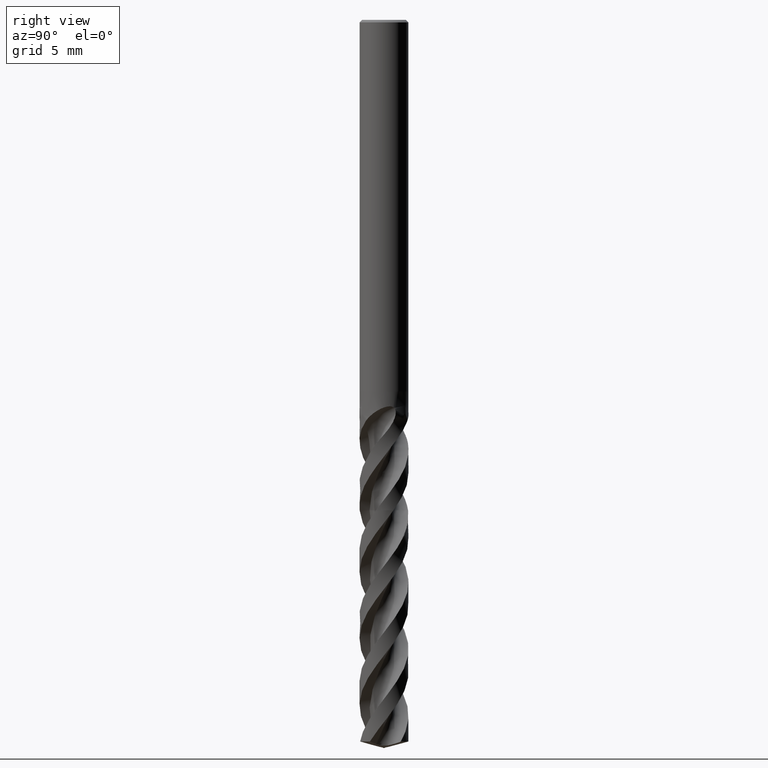
[diagram: clean part render]
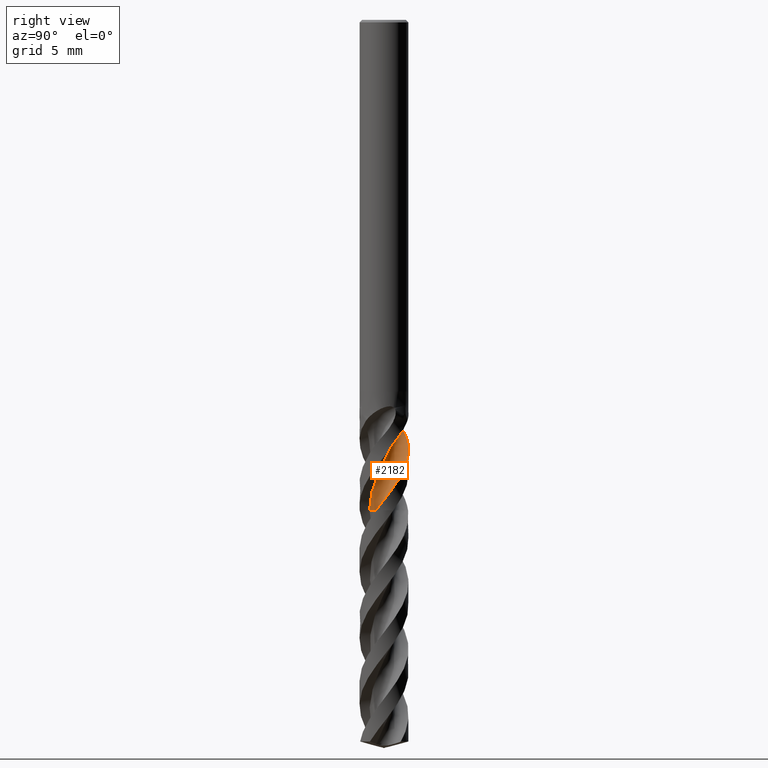
[diagram: same view with one face highlighted and labeled with its STEP entity id]
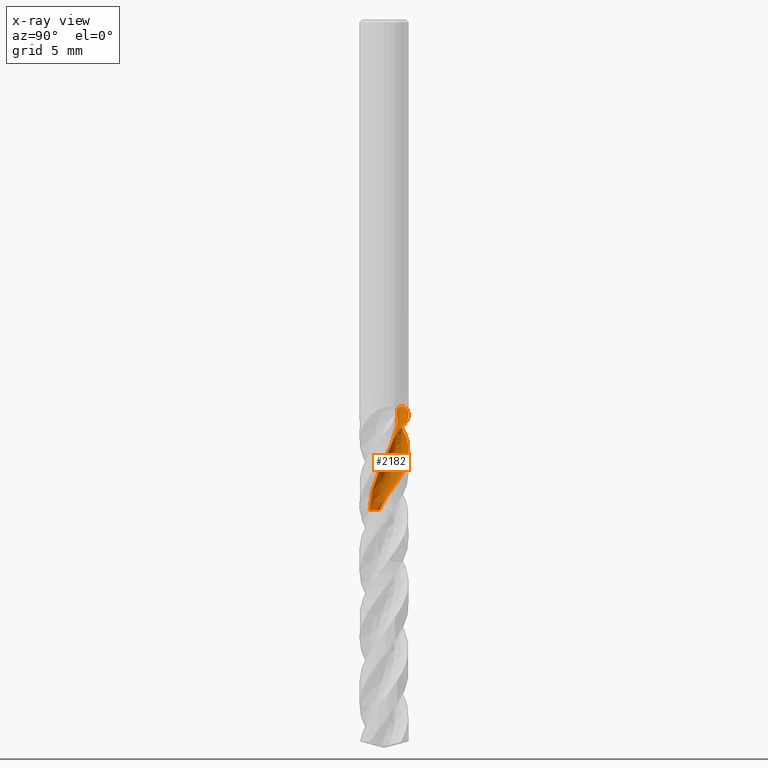
[diagram: x-ray of the same camera — body ghosted, the highlighted face saturated]
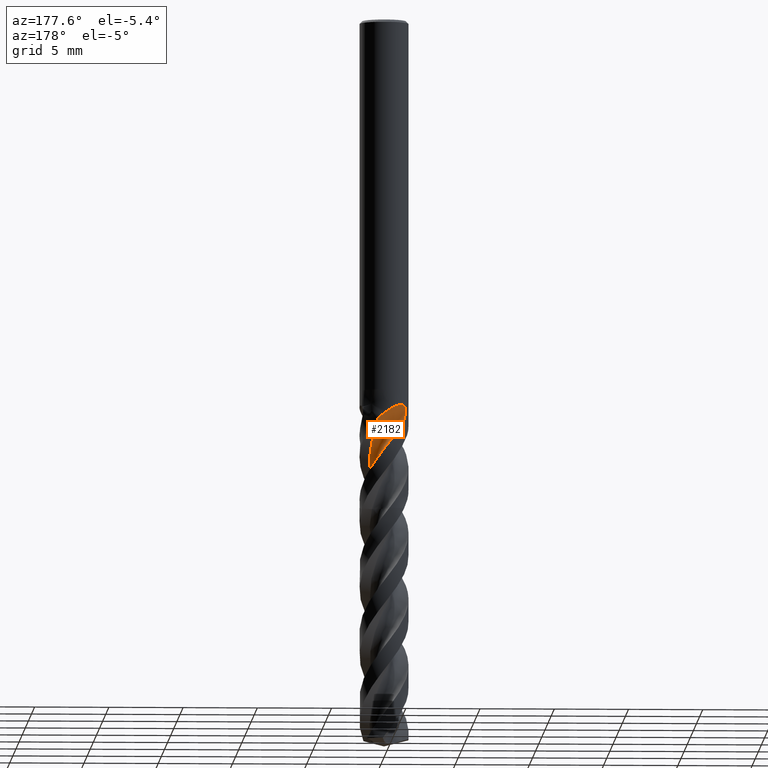
[diagram: same view with one face highlighted and labeled with its STEP entity id]
A machine part, right view. The second image highlights one B-rep face of the part: STEP entity #2182.
The next image is the same camera in x-ray: the body ghosted, the highlighted face saturated — about 0% of this face is hidden behind the body in this view.
A second angle (auxiliary view) of the same face is appended — the face is thin or edge-on in the first view.
In plain terms, the highlighted face is a freeform B-spline surface patch.
Its self-contained STEP definition (entity closure, byte-faithful):
#1944 = VERTEX_POINT('', #1945);
#1945 = CARTESIAN_POINT('', (0.0131020904843902, -0.971799525037935, -33.));
#1951 = EDGE_CURVE('', #1944, #1952, #1954, .T.);
#1952 = VERTEX_POINT('', #1953);
#1953 = CARTESIAN_POINT('', (0.49670759002583, 1.57346165190345, -26.979900439806));
#1954 = B_SPLINE_CURVE_WITH_KNOTS('', 3, (#1955, #1956, #1957, #1958, #1959, #1960, #1961, #1962, #1963, #1964, #1965, #1966, #1967, #1968, #1969, #1970, #1971, #1972, #1973, #1974, #1975, #1976, #1977, #1978, #1979, #1980, #1981, #1982, #1983, #1984, #1985), .UNSPECIFIED., .F., .U., (4, 1, 1, 1, 1, 1, 1, 1, 1, 1, 1, 1, 1, 1, 1, 1, 1, 1, 1, 1, 1, 1, 1, 1, 1, 1, 1, 1, 4), (16.05, 16.1126213592233, 16.3364077669903, 16.5601941747573, 16.7839805825243, 17.0077669902913, 17.2315533980583, 17.4553398058252, 17.6791262135922, 17.9029126213592, 18.1266990291262, 18.3504854368932, 18.5742718446602, 18.7980582524272, 19.0218446601942, 19.2456310679612, 19.4694174757282, 19.6932038834951, 19.9169902912621, 20.1407766990291, 20.3645631067961, 20.5883495145631, 20.8121359223301, 21.0359223300971, 21.2597087378641, 21.4834951456311, 21.7072815533981, 21.931067961165, 22.070099560194), .UNSPECIFIED.);
#1955 = CARTESIAN_POINT('', (0.0131020904843902, -0.971799525037935, -33.));
#1956 = CARTESIAN_POINT('', (0.0226140409089809, -0.97181311853795, -32.9791262135922));
#1957 = CARTESIAN_POINT('', (0.0661287569991936, -0.971239658530028, -32.8836569579288));
#1958 = CARTESIAN_POINT('', (0.143578533043543, -0.965031214780982, -32.7135922330097));
#1959 = CARTESIAN_POINT('', (0.244250959712901, -0.946249666732746, -32.4898058252427));
#1960 = CARTESIAN_POINT('', (0.3425817079426, -0.917024930603788, -32.2660194174757));
#1961 = CARTESIAN_POINT('', (0.437493439930407, -0.87763886911202, -32.0422330097087));
#1962 = CARTESIAN_POINT('', (0.52794184109782, -0.828483882934256, -31.8184466019417));
#1963 = CARTESIAN_POINT('', (0.612926791987953, -0.77005911862718, -31.5946601941748));
#1964 = CARTESIAN_POINT('', (0.691503628772232, -0.702965609439488, -31.3708737864078));
#1965 = CARTESIAN_POINT('', (0.762791954000859, -0.627900026681434, -31.1470873786408));
#1966 = CARTESIAN_POINT('', (0.825990928728089, -0.545648476821319, -30.9233009708738));
#1967 = CARTESIAN_POINT('', (0.880367197434662, -0.457075274837783, -30.6995145631068));
#1968 = CARTESIAN_POINT('', (0.925341283691865, -0.36312595180147, -30.4757281553398));
#1969 = CARTESIAN_POINT('', (0.960202371940148, -0.264773011997502, -30.2519417475728));
#1970 = CARTESIAN_POINT('', (0.985205444545736, -0.163171656013547, -30.0281553398058));
#1971 = CARTESIAN_POINT('', (0.997491547758268, -0.0590265318630547, -29.8043689320388));
#1972 = CARTESIAN_POINT('', (0.994909050828295, 0.0457669819572636, -29.5805825242718));
#1973 = CARTESIAN_POINT('', (0.977705911766928, 0.148704661574756, -29.3567961165049));
#1974 = CARTESIAN_POINT('', (0.947592598004681, 0.248163274005895, -29.1330097087379));
#1975 = CARTESIAN_POINT('', (0.900136157724671, 0.339839567675919, -28.9092233009709));
#1976 = CARTESIAN_POINT('', (0.858001736740412, 0.430549599531326, -28.6854368932039));
#1977 = CARTESIAN_POINT('', (0.825965157546661, 0.528525681295621, -28.4616504854369));
#1978 = CARTESIAN_POINT('', (0.798828715651507, 0.637418469554116, -28.2378640776699));
#1979 = CARTESIAN_POINT('', (0.772767076662069, 0.761131772603629, -28.0140776699029));
#1980 = CARTESIAN_POINT('', (0.742476044242813, 0.902301462352913, -27.7902912621359));
#1981 = CARTESIAN_POINT('', (0.702159825906656, 1.06250960346614, -27.5665048543689));
#1982 = CARTESIAN_POINT('', (0.645519358019465, 1.24207043844005, -27.3427184466019));
#1983 = CARTESIAN_POINT('', (0.576066235132568, 1.41498884091217, -27.1471836417476));
#1984 = CARTESIAN_POINT('', (0.520240851553265, 1.52892613205528, -27.026244306149));
#1985 = CARTESIAN_POINT('', (0.49670759002583, 1.57346165190345, -26.979900439806));
#2182 = ADVANCED_FACE('', (#2183), #2480, .T.);
#2183 = FACE_OUTER_BOUND('', #2184, .T.);
#2184 = EDGE_LOOP('', (#2185, #2236, #2251, #2302, #2314, #2416, #2424, #2479));
#2185 = ORIENTED_EDGE('', *, *, #2186, .T.);
#2186 = EDGE_CURVE('', #1944, #2187, #2189, .T.);
#2187 = VERTEX_POINT('', #2188);
#2188 = CARTESIAN_POINT('', (1.54610280983681, -0.528626256009903, -33.));
#2189 = B_SPLINE_CURVE_WITH_KNOTS('', 3, (#2190, #2191, #2192, #2193, #2194, #2195, #2196, #2197, #2198, #2199, #2200, #2201, #2202, #2203, #2204, #2205, #2206, #2207, #2208, #2209, #2210, #2211, #2212, #2213, #2214, #2215, #2216, #2217, #2218, #2219, #2220, #2221, #2222, #2223, #2224, #2225, #2226, #2227, #2228, #2229, #2230, #2231, #2232, #2233, #2234, #2235), .UNSPECIFIED., .F., .U., (4, 3, 3, 3, 3, 3, 3, 3, 3, 3, 3, 3, 3, 3, 3, 4), (0., 0.132464291243381, 0.264607078719821, 0.39643959286919, 0.527969728380008, 0.659202376803676, 0.790139631887621, 0.920780885919178, 0.946708448213211, 1.07914212865441, 1.2112555076672, 1.34305948600255, 1.47456166583973, 1.60576667043317, 1.73667633864977, 1.86861989140208), .UNSPECIFIED.);
#2190 = CARTESIAN_POINT('', (0.0131020904843889, -0.971799525037935, -33.));
#2191 = CARTESIAN_POINT('', (0.0273870974185686, -0.930019365410261, -33.));
#2192 = CARTESIAN_POINT('', (0.0445591050700874, -0.889118792339436, -33.));
#2193 = CARTESIAN_POINT('', (0.0643807446790761, -0.849663174680669, -33.));
#2194 = CARTESIAN_POINT('', (0.0841542752336064, -0.810303319657893, -33.));
#2195 = CARTESIAN_POINT('', (0.106655308802681, -0.772200689225171, -33.));
#2196 = CARTESIAN_POINT('', (0.131574316266139, -0.735879431468302, -33.));
#2197 = CARTESIAN_POINT('', (0.156434813511215, -0.699643456591436, -33.));
#2198 = CARTESIAN_POINT('', (0.183815482861877, -0.665014892695391, -33.));
#2199 = CARTESIAN_POINT('', (0.213341430526762, -0.632467871125979, -33.));
#2200 = CARTESIAN_POINT('', (0.242799655779506, -0.599995501277613, -33.));
#2201 = CARTESIAN_POINT('', (0.274527265993092, -0.569447402645295, -33.));
#2202 = CARTESIAN_POINT('', (0.308091833153283, -0.541239927218389, -33.));
#2203 = CARTESIAN_POINT('', (0.341580485959115, -0.513096249792359, -33.));
#2204 = CARTESIAN_POINT('', (0.377049382091417, -0.487155147924358, -33.));
#2205 = CARTESIAN_POINT('', (0.414017278949075, -0.463768590936816, -33.));
#2206 = CARTESIAN_POINT('', (0.450901964268702, -0.44043467506607, -33.));
#2207 = CARTESIAN_POINT('', (0.489445129975114, -0.419538591941783, -33.));
#2208 = CARTESIAN_POINT('', (0.529126165389514, -0.40136258937158, -33.));
#2209 = CARTESIAN_POINT('', (0.568717496554081, -0.383227676068794, -33.));
#2210 = CARTESIAN_POINT('', (0.60961918365129, -0.367719131723517, -33.));
#2211 = CARTESIAN_POINT('', (0.651281245604813, -0.355045490665683, -33.));
#2212 = CARTESIAN_POINT('', (0.659549657559408, -0.352530231451011, -33.));
#2213 = CARTESIAN_POINT('', (0.667852283983677, -0.350124815682308, -33.));
#2214 = CARTESIAN_POINT('', (0.676184713351481, -0.347830521455659, -33.));
#2215 = CARTESIAN_POINT('', (0.718745378163717, -0.33611164773339, -33.));
#2216 = CARTESIAN_POINT('', (0.762204402807338, -0.327272519712593, -33.));
#2217 = CARTESIAN_POINT('', (0.80596132959021, -0.321435264441807, -33.));
#2218 = CARTESIAN_POINT('', (0.849612426752515, -0.315612127038885, -33.));
#2219 = CARTESIAN_POINT('', (0.893760283773454, -0.312749571989995, -33.));
#2220 = CARTESIAN_POINT('', (0.937797862468094, -0.312886959761051, -33.));
#2221 = CARTESIAN_POINT('', (0.981732308105489, -0.313024025779157, -33.));
#2222 = CARTESIAN_POINT('', (1.02575765000143, -0.316147561645735, -33.));
#2223 = CARTESIAN_POINT('', (1.06927135696063, -0.322214818622939, -33.));
#2224 = CARTESIAN_POINT('', (1.11268542829748, -0.328268183082884, -33.));
#2225 = CARTESIAN_POINT('', (1.15578758642804, -0.337279262124182, -33.));
#2226 = CARTESIAN_POINT('', (1.19799062401566, -0.349125292248352, -33.));
#2227 = CARTESIAN_POINT('', (1.24009828905512, -0.360944552117505, -33.));
#2228 = CARTESIAN_POINT('', (1.28150147852078, -0.375639397134144, -33.));
#2229 = CARTESIAN_POINT('', (1.32163866905579, -0.393010531089237, -33.));
#2230 = CARTESIAN_POINT('', (1.36168551263745, -0.410342563427896, -33.));
#2231 = CARTESIAN_POINT('', (1.40065250366391, -0.43041688367061, -33.));
#2232 = CARTESIAN_POINT('', (1.43801352777171, -0.452962457592306, -33.));
#2233 = CARTESIAN_POINT('', (1.47566961782529, -0.475686089563829, -33.));
#2234 = CARTESIAN_POINT('', (1.51186319493472, -0.501022029169489, -33.));
#2235 = CARTESIAN_POINT('', (1.5461028098368, -0.528626256009906, -33.));
#2236 = ORIENTED_EDGE('', *, *, #2237, .T.);
#2237 = EDGE_CURVE('', #2187, #2238, #2240, .T.);
#2238 = VERTEX_POINT('', #2239);
#2239 = CARTESIAN_POINT('', (1.58935764553154, 0.443218089195881, -31.7171882192761));
#2240 = B_SPLINE_CURVE_WITH_KNOTS('', 3, (#2241, #2242, #2243, #2244, #2245, #2246, #2247, #2248, #2249, #2250), .UNSPECIFIED., .F., .U., (4, 1, 1, 1, 1, 1, 1, 4), (16.05, 16.1126213592233, 16.3364077669903, 16.5601941747573, 16.7839805825243, 17.0077669902913, 17.2315533980583, 17.3328117807237), .UNSPECIFIED.);
#2241 = CARTESIAN_POINT('', (1.54610280983681, -0.528626256009903, -33.));
#2242 = CARTESIAN_POINT('', (1.55150156727805, -0.513573220880668, -32.9791262135922));
#2243 = CARTESIAN_POINT('', (1.57519303848622, -0.444350133916118, -32.8836569579288));
#2244 = CARTESIAN_POINT('', (1.60914632249362, -0.318210533535049, -32.7135922330097));
#2245 = CARTESIAN_POINT('', (1.63632009593372, -0.148193669276417, -32.4898058252427));
#2246 = CARTESIAN_POINT('', (1.64563489466432, 0.0240191805206408, -32.2660194174757));
#2247 = CARTESIAN_POINT('', (1.63692797159097, 0.196562875297192, -32.0422330097087));
#2248 = CARTESIAN_POINT('', (1.61510279646755, 0.336353454430326, -31.8592892769756));
#2249 = CARTESIAN_POINT('', (1.59593011503817, 0.41794521981666, -31.7509410134981));
#2250 = CARTESIAN_POINT('', (1.58935764553158, 0.443218089195721, -31.7171882192763));
#2251 = ORIENTED_EDGE('', *, *, #2252, .F.);
#2252 = EDGE_CURVE('', #2253, #2238, #2255, .T.);
#2253 = VERTEX_POINT('', #2254);
#2254 = CARTESIAN_POINT('', (0.216402587036073, 1.63574751117772, -29.2273784322143));
#2255 = B_SPLINE_CURVE_WITH_KNOTS('', 3, (#2256, #2257, #2258, #2259, #2260, #2261, #2262, #2263, #2264, #2265, #2266, #2267, #2268, #2269, #2270, #2271, #2272, #2273, #2274, #2275, #2276, #2277, #2278, #2279, #2280, #2281, #2282, #2283, #2284, #2285, #2286, #2287, #2288, #2289, #2290, #2291, #2292, #2293, #2294, #2295, #2296, #2297, #2298, #2299, #2300, #2301), .UNSPECIFIED., .F., .U., (4, 3, 3, 3, 3, 3, 3, 3, 3, 3, 3, 3, 3, 3, 3, 4), (0., 0.131558150279251, 0.263082255568551, 0.460441066199545, 0.657763864661832, 0.789235369874421, 0.986479585577695, 1.18368218357905, 1.31510954198219, 1.61083543596993, 1.90639606273555, 2.20178539661446, 2.49700885141245, 2.79206435084496, 3.08695111536573, 3.14746337201156), .UNSPECIFIED.);
#2256 = CARTESIAN_POINT('', (0.216402587036071, 1.63574751117772, -29.2273784322143));
#2257 = CARTESIAN_POINT('', (0.242371108497258, 1.63231198388069, -29.2625479333839));
#2258 = CARTESIAN_POINT('', (0.26836604659418, 1.62824256715324, -29.2976416881224));
#2259 = CARTESIAN_POINT('', (0.294291112386156, 1.6235432674156, -29.3326969061772));
#2260 = CARTESIAN_POINT('', (0.320209469216335, 1.61884518377603, -29.3677430525436));
#2261 = CARTESIAN_POINT('', (0.346052626739394, 1.61351945372785, -29.4027664318495));
#2262 = CARTESIAN_POINT('', (0.3717827320547, 1.60756884771569, -29.4377609679136));
#2263 = CARTESIAN_POINT('', (0.410392103099417, 1.59863965163783, -29.4902721026673));
#2264 = CARTESIAN_POINT('', (0.448768441058738, 1.58829906259827, -29.5427346139353));
#2265 = CARTESIAN_POINT('', (0.486832442681916, 1.57654501133092, -29.5950873350434));
#2266 = CARTESIAN_POINT('', (0.524889498746171, 1.56479310483166, -29.6474305033222));
#2267 = CARTESIAN_POINT('', (0.562647505399084, 1.55162261061056, -29.6996930980258));
#2268 = CARTESIAN_POINT('', (0.599966948785632, 1.53705551635748, -29.7518593035467));
#2269 = CARTESIAN_POINT('', (0.624832009660305, 1.52734980661207, -29.7866164102495));
#2270 = CARTESIAN_POINT('', (0.649510388400731, 1.51702135317521, -29.8213393358575));
#2271 = CARTESIAN_POINT('', (0.673960695652196, 1.50608000475274, -29.8560235958369));
#2272 = CARTESIAN_POINT('', (0.710643029742166, 1.48966490640245, -29.9080597358799));
#2273 = CARTESIAN_POINT('', (0.74682660981129, 1.47186201336403, -29.9600307398139));
#2274 = CARTESIAN_POINT('', (0.782348683266454, 1.45273209429381, -30.0119444899435));
#2275 = CARTESIAN_POINT('', (0.817863261713162, 1.43360621155626, -30.0638472864897));
#2276 = CARTESIAN_POINT('', (0.852732693186609, 1.413145463975, -30.1157208510769));
#2277 = CARTESIAN_POINT('', (0.886811848107081, 1.3914254367579, -30.1675652006209));
#2278 = CARTESIAN_POINT('', (0.909524192433184, 1.37694993881558, -30.2021173108759));
#2279 = CARTESIAN_POINT('', (0.931890845698472, 1.36191214906467, -30.2366673737416));
#2280 = CARTESIAN_POINT('', (0.953865187146177, 1.3463436428901, -30.2712215179499));
#2281 = CARTESIAN_POINT('', (1.00330985261287, 1.31131280560882, -30.3489721119749));
#2282 = CARTESIAN_POINT('', (1.05081554961419, 1.2735600727221, -30.4268007788068));
#2283 = CARTESIAN_POINT('', (1.09608886349106, 1.23332445176883, -30.5045729539859));
#2284 = CARTESIAN_POINT('', (1.14133687625303, 1.19311131660202, -30.5823016659729));
#2285 = CARTESIAN_POINT('', (1.18440126892321, 1.1503731957788, -30.6600664671585));
#2286 = CARTESIAN_POINT('', (1.22495918541818, 1.10542977798665, -30.7377927572588));
#2287 = CARTESIAN_POINT('', (1.2654935964731, 1.0605124072626, -30.8154740008969));
#2288 = CARTESIAN_POINT('', (1.3035724438656, 1.01334044326074, -30.8932040079729));
#2289 = CARTESIAN_POINT('', (1.33892686546691, 0.964248333641778, -30.9708893600792));
#2290 = CARTESIAN_POINT('', (1.37426143340972, 0.915183792228869, -31.0485310871344));
#2291 = CARTESIAN_POINT('', (1.40691362510942, 0.864146684673164, -31.1262179896139));
#2292 = CARTESIAN_POINT('', (1.43664922505946, 0.811504161502594, -31.2038624198437));
#2293 = CARTESIAN_POINT('', (1.46636790815052, 0.758891587152401, -31.2814626774361));
#2294 = CARTESIAN_POINT('', (1.49320695848134, 0.704616039522568, -31.3591090884268));
#2295 = CARTESIAN_POINT('', (1.51697523591138, 0.649065585000106, -31.4367125617587));
#2296 = CARTESIAN_POINT('', (1.5407299208539, 0.593546898402864, -31.5142716555917));
#2297 = CARTESIAN_POINT('', (1.56144394359531, 0.536692565151444, -31.5918766301804));
#2298 = CARTESIAN_POINT('', (1.57896996256307, 0.478909028233193, -31.669439019099));
#2299 = CARTESIAN_POINT('', (1.58256639036301, 0.46705155398682, -31.6853552138863));
#2300 = CARTESIAN_POINT('', (1.5860292979893, 0.455153375101821, -31.7012718661161));
#2301 = CARTESIAN_POINT('', (1.58935764553154, 0.443218089195876, -31.7171882192761));
#2302 = ORIENTED_EDGE('', *, *, #2303, .T.);
#2303 = EDGE_CURVE('', #2253, #2304, #2306, .T.);
#2304 = VERTEX_POINT('', #2305);
#2305 = CARTESIAN_POINT('', (-0.367382290490072, 1.6085801977627, -28.4677909021292));
#2306 = B_SPLINE_CURVE_WITH_KNOTS('', 3, (#2307, #2308, #2309, #2310, #2311, #2312, #2313), .UNSPECIFIED., .F., .U., (4, 1, 1, 1, 4), (19.8226215677857, 19.9169902912621, 20.1407766990291, 20.3645631067961, 20.5822090978708), .UNSPECIFIED.);
#2307 = CARTESIAN_POINT('', (0.216402587036073, 1.63574751117772, -29.2273784322143));
#2308 = CARTESIAN_POINT('', (0.191955636658363, 1.63647987846561, -29.1959221910555));
#2309 = CARTESIAN_POINT('', (0.109605159389028, 1.63616384179584, -29.089870480641));
#2310 = CARTESIAN_POINT('', (-0.0292248722159259, 1.61734393506436, -28.9092233009709));
#2311 = CARTESIAN_POINT('', (-0.195138012003522, 1.60205128828687, -28.687483698768));
#2312 = CARTESIAN_POINT('', (-0.308995130355743, 1.60493548385782, -28.5403395658208));
#2313 = CARTESIAN_POINT('', (-0.367382290490072, 1.6085801977627, -28.4677909021292));
#2314 = ORIENTED_EDGE('', *, *, #2315, .F.);
#2315 = EDGE_CURVE('', #2316, #2304, #2318, .T.);
#2316 = VERTEX_POINT('', #2317);
#2317 = CARTESIAN_POINT('', (-1.14714504757728, 1.18598408076118, -26.));
#2318 = B_SPLINE_CURVE_WITH_KNOTS('', 3, (#2319, #2320, #2321, #2322, #2323, #2324, #2325, #2326, #2327, #2328, #2329, #2330, #2331, #2332, #2333, #2334, #2335, #2336, #2337, #2338, #2339, #2340, #2341, #2342, #2343, #2344, #2345, #2346, #2347, #2348, #2349, #2350, #2351, #2352, #2353, #2354, #2355, #2356, #2357, #2358, #2359, #2360, #2361, #2362, #2363, #2364, #2365, #2366, #2367, #2368, #2369, #2370, #2371, #2372, #2373, #2374, #2375, #2376, #2377, #2378, #2379, #2380, #2381, #2382, #2383, #2384, #2385, #2386, #2387, #2388, #2389, #2390, #2391, #2392, #2393, #2394, #2395, #2396, #2397, #2398, #2399, #2400, #2401, #2402, #2403, #2404, #2405, #2406, #2407, #2408, #2409, #2410, #2411, #2412, #2413, #2414, #2415), .UNSPECIFIED., .F., .U., (4, 3, 3, 3, 3, 3, 3, 3, 3, 3, 3, 3, 3, 3, 3, 3, 3, 3, 3, 3, 3, 3, 3, 3, 3, 3, 3, 3, 3, 3, 3, 3, 4), (0., 0.0877042025632934, 0.175145882330938, 0.233247891233882, 0.291234188662141, 0.34913609520336, 0.407017885749859, 0.464957569441073, 0.523011476421356, 0.581196554957011, 0.63950037887598, 0.678421999650695, 0.704378570194236, 0.792178561920328, 0.880090578696511, 0.968066940814208, 1.05607675333868, 1.1440997914299, 1.27647236738631, 1.4088022386862, 1.54106357726042, 1.67324671031367, 1.80534073489616, 1.93734505889523, 2.06925469107032, 2.20107318130978, 2.33279947897392, 2.46443864705945, 2.66191031308869, 2.79335500383239, 2.92473413740325, 3.05605469934517, 3.15436701502411), .UNSPECIFIED.);
#2319 = CARTESIAN_POINT('', (-1.14714504757703, 1.18598408076142, -26.));
#2320 = CARTESIAN_POINT('', (-1.16815832907962, 1.16565894975834, -26.0000270782124));
#2321 = CARTESIAN_POINT('', (-1.18869181659137, 1.14470560325438, -26.001749693837));
#2322 = CARTESIAN_POINT('', (-1.20841631063864, 1.12349010684674, -26.005688821886));
#2323 = CARTESIAN_POINT('', (-1.22808176385128, 1.10233811425381, -26.0096161590415));
#2324 = CARTESIAN_POINT('', (-1.2470790869968, 1.08076952455481, -26.0157898314289));
#2325 = CARTESIAN_POINT('', (-1.26488600419222, 1.05951092320874, -26.0247645953059));
#2326 = CARTESIAN_POINT('', (-1.27671809232423, 1.0453853088798, -26.0307280192939));
#2327 = CARTESIAN_POINT('', (-1.28808814669038, 1.03132439881821, -26.0379643198475));
#2328 = CARTESIAN_POINT('', (-1.29879024413681, 1.01766590870239, -26.0465669051216));
#2329 = CARTESIAN_POINT('', (-1.30947102811231, 1.00403461978086, -26.0551523581511));
#2330 = CARTESIAN_POINT('', (-1.3195519334293, 0.990720416596209, -26.0651613451622));
#2331 = CARTESIAN_POINT('', (-1.32881662060669, 0.978134136404322, -26.0765346608684));
#2332 = CARTESIAN_POINT('', (-1.33806782433706, 0.965566173770152, -26.0878914243158));
#2333 = CARTESIAN_POINT('', (-1.34657315369172, 0.953633825604908, -26.1006996758115));
#2334 = CARTESIAN_POINT('', (-1.354168671314, 0.942723294308401, -26.1146919218825));
#2335 = CARTESIAN_POINT('', (-1.36176155013901, 0.931816553494852, -26.1286793068364));
#2336 = CARTESIAN_POINT('', (-1.36850717361848, 0.921845714330448, -26.1439595951596));
#2337 = CARTESIAN_POINT('', (-1.37434788132232, 0.913054161101544, -26.1601104609945));
#2338 = CARTESIAN_POINT('', (-1.38019443087959, 0.904253814594849, -26.1762774808633));
#2339 = CARTESIAN_POINT('', (-1.38518206372218, 0.896565944696992, -26.1934308669914));
#2340 = CARTESIAN_POINT('', (-1.38935496035371, 0.890052130012922, -26.2111271356311));
#2341 = CARTESIAN_POINT('', (-1.39353608350544, 0.883525473882537, -26.2288582909992));
#2342 = CARTESIAN_POINT('', (-1.39692918893164, 0.878131480993517, -26.247238455875));
#2343 = CARTESIAN_POINT('', (-1.3996324585756, 0.87380145393654, -26.2659043633178));
#2344 = CARTESIAN_POINT('', (-1.40234183619924, 0.869461643276471, -26.2846124459772));
#2345 = CARTESIAN_POINT('', (-1.4043732176783, 0.86616606694766, -26.3036916567227));
#2346 = CARTESIAN_POINT('', (-1.40583436408838, 0.863788018409739, -26.3228848059377));
#2347 = CARTESIAN_POINT('', (-1.40729849243807, 0.861405116698252, -26.3421171249521));
#2348 = CARTESIAN_POINT('', (-1.40819581758577, 0.859933257328512, -26.3615263594305));
#2349 = CARTESIAN_POINT('', (-1.40862134484227, 0.859235652690669, -26.3809437810252));
#2350 = CARTESIAN_POINT('', (-1.4089054121537, 0.858769955908885, -26.3939061815837));
#2351 = CARTESIAN_POINT('', (-1.40897940166945, 0.858648410263604, -26.4068904749104));
#2352 = CARTESIAN_POINT('', (-1.408866827081, 0.85883308247346, -26.4198625456436));
#2353 = CARTESIAN_POINT('', (-1.4087917518352, 0.858956239144409, -26.4285135335105));
#2354 = CARTESIAN_POINT('', (-1.40863361103655, 0.859215661862242, -26.4371631196912));
#2355 = CARTESIAN_POINT('', (-1.40839846278417, 0.859600936497396, -26.4458035284597));
#2356 = CARTESIAN_POINT('', (-1.40760305668153, 0.860904156031811, -26.4750303408812));
#2357 = CARTESIAN_POINT('', (-1.40593007048188, 0.863644012799824, -26.5041981623626));
#2358 = CARTESIAN_POINT('', (-1.40355873314643, 0.867480767860811, -26.5331151761467));
#2359 = CARTESIAN_POINT('', (-1.40118437019358, 0.871322418283055, -26.5620690854914));
#2360 = CARTESIAN_POINT('', (-1.39810330356286, 0.876272969631912, -26.590837357089));
#2361 = CARTESIAN_POINT('', (-1.39443190756207, 0.882076898673136, -26.6193252493036));
#2362 = CARTESIAN_POINT('', (-1.39075782436061, 0.887885075777479, -26.6478339926284));
#2363 = CARTESIAN_POINT('', (-1.38648640864181, 0.894557039171018, -26.6761035410094));
#2364 = CARTESIAN_POINT('', (-1.38169440361681, 0.901898317447146, -26.7040879040667));
#2365 = CARTESIAN_POINT('', (-1.37690057657378, 0.909242387026967, -26.7320829073494));
#2366 = CARTESIAN_POINT('', (-1.37158044520894, 0.917264285360382, -26.7598202222541));
#2367 = CARTESIAN_POINT('', (-1.36578488633444, 0.925814044104114, -26.7872783625274));
#2368 = CARTESIAN_POINT('', (-1.35998845653944, 0.934365087652367, -26.8147406290391));
#2369 = CARTESIAN_POINT('', (-1.353711963183, 0.94345076677222, -26.8419430376353));
#2370 = CARTESIAN_POINT('', (-1.34699084060791, 0.952951035110977, -26.8688775218315));
#2371 = CARTESIAN_POINT('', (-1.33688334684405, 0.967237919766958, -26.9093826797131));
#2372 = CARTESIAN_POINT('', (-1.32576224486589, 0.982472106008329, -26.9493199631175));
#2373 = CARTESIAN_POINT('', (-1.31370714495437, 0.998335383173333, -26.9886896890764));
#2374 = CARTESIAN_POINT('', (-1.30165593413314, 1.01419354269371, -27.028046713986));
#2375 = CARTESIAN_POINT('', (-1.28865965881001, 1.03069616609834, -27.0668698114316));
#2376 = CARTESIAN_POINT('', (-1.27477420273149, 1.0475928274145, -27.1051762764371));
#2377 = CARTESIAN_POINT('', (-1.26089593783469, 1.06448073806655, -27.1434629027892));
#2378 = CARTESIAN_POINT('', (-1.24612078621899, 1.08177319753929, -27.1812586702246));
#2379 = CARTESIAN_POINT('', (-1.23049272710019, 1.09926686866909, -27.2185870610115));
#2380 = CARTESIAN_POINT('', (-1.21487390878084, 1.11675019587164, -27.2558933796927));
#2381 = CARTESIAN_POINT('', (-1.19839454728238, 1.13444437178495, -27.2927517674119));
#2382 = CARTESIAN_POINT('', (-1.18109837298441, 1.15217474079829, -27.3291914710141));
#2383 = CARTESIAN_POINT('', (-1.16381385853747, 1.16989315725737, -27.3656066095588));
#2384 = CARTESIAN_POINT('', (-1.14570667268659, 1.18765508897546, -27.4016203458001));
#2385 = CARTESIAN_POINT('', (-1.12682110014286, 1.2053108347115, -27.4372625795812));
#2386 = CARTESIAN_POINT('', (-1.10794835215256, 1.2229545910279, -27.4728806099272));
#2387 = CARTESIAN_POINT('', (-1.08829052820976, 1.24049959983442, -27.5081412522446));
#2388 = CARTESIAN_POINT('', (-1.06789917462708, 1.25781212938611, -27.5430782792928));
#2389 = CARTESIAN_POINT('', (-1.04752244855361, 1.27511223998855, -27.5779902446559));
#2390 = CARTESIAN_POINT('', (-1.02640681924997, 1.29218577156361, -27.6125925728603));
#2391 = CARTESIAN_POINT('', (-1.00460920661975, 1.30891571232636, -27.6469192867074));
#2392 = CARTESIAN_POINT('', (-0.982826654880639, 1.32563409366651, -27.6812222827782));
#2393 = CARTESIAN_POINT('', (-0.960355237344915, 1.34201536113307, -27.715261311215));
#2394 = CARTESIAN_POINT('', (-0.937261071763229, 1.35795496367045, -27.7490735569459));
#2395 = CARTESIAN_POINT('', (-0.914183058017267, 1.3738834182042, -27.7828621547197));
#2396 = CARTESIAN_POINT('', (-0.890476500713984, 1.38937543848842, -27.8164362347273));
#2397 = CARTESIAN_POINT('', (-0.866215880605607, 1.40433971965, -27.8498349221729));
#2398 = CARTESIAN_POINT('', (-0.841971307540562, 1.41929410277652, -27.8832115182546));
#2399 = CARTESIAN_POINT('', (-0.817165039059552, 1.43372660832145, -27.9164229257245));
#2400 = CARTESIAN_POINT('', (-0.791879548007021, 1.44755890431036, -27.9495098052043));
#2401 = CARTESIAN_POINT('', (-0.753948830902625, 1.46830870525233, -27.9991433702717));
#2402 = CARTESIAN_POINT('', (-0.714917883297947, 1.48771521691746, -28.048527758493));
#2403 = CARTESIAN_POINT('', (-0.675101028050166, 1.50556919532966, -28.0978089700601));
#2404 = CARTESIAN_POINT('', (-0.648597406899493, 1.51745348596298, -28.1306124286228));
#2405 = CARTESIAN_POINT('', (-0.621735331015462, 1.52865637540998, -28.1633821033127));
#2406 = CARTESIAN_POINT('', (-0.594617468508319, 1.53913289424448, -28.1961633369348));
#2407 = CARTESIAN_POINT('', (-0.567513130856302, 1.54960418798429, -28.2289282211328));
#2408 = CARTESIAN_POINT('', (-0.540146270869264, 1.55935254201449, -28.2617159892444));
#2409 = CARTESIAN_POINT('', (-0.512624923087611, 1.56834807623525, -28.2945715295537));
#2410 = CARTESIAN_POINT('', (-0.485115844911692, 1.57733960005437, -28.32741242216));
#2411 = CARTESIAN_POINT('', (-0.457443304578904, 1.58558203420787, -28.3603305388621));
#2412 = CARTESIAN_POINT('', (-0.429715630907692, 1.59306135366897, -28.3933662317267));
#2413 = CARTESIAN_POINT('', (-0.408957481790019, 1.59866069930876, -28.4180981961468));
#2414 = CARTESIAN_POINT('', (-0.388164284580948, 1.60383381545569, -28.4429010634985));
#2415 = CARTESIAN_POINT('', (-0.367382290490074, 1.6085801977627, -28.4677909021292));
#2416 = ORIENTED_EDGE('', *, *, #2417, .T.);
#2417 = EDGE_CURVE('', #2316, #2418, #2420, .T.);
#2418 = VERTEX_POINT('', #2419);
#2419 = CARTESIAN_POINT('', (-1.14613959335509, 1.18695578373579, -26.));
#2420 = LINE('', #2421, #2422);
#2421 = CARTESIAN_POINT('', (-1.14714504757728, 1.18598408076118, -26.));
#2422 = VECTOR('', #2423, 0.00139826494763476);
#2423 = DIRECTION('', (0.00100545422218801, 0.000971702974611244, 0.));
#2424 = ORIENTED_EDGE('', *, *, #2425, .T.);
#2425 = EDGE_CURVE('', #2418, #1952, #2426, .T.);
#2426 = B_SPLINE_CURVE_WITH_KNOTS('', 3, (#2427, #2428, #2429, #2430, #2431, #2432, #2433, #2434, #2435, #2436, #2437, #2438, #2439, #2440, #2441, #2442, #2443, #2444, #2445, #2446, #2447, #2448, #2449, #2450, #2451, #2452, #2453, #2454, #2455, #2456, #2457, #2458, #2459, #2460, #2461, #2462, #2463, #2464, #2465, #2466, #2467, #2468, #2469, #2470, #2471, #2472, #2473, #2474, #2475, #2476, #2477, #2478), .UNSPECIFIED., .F., .U., (4, 3, 3, 3, 3, 3, 3, 3, 3, 3, 3, 3, 3, 3, 3, 3, 3, 4), (0., 0.0877273706822145, 0.175149857412604, 0.26237592039565, 0.34947238087809, 0.436481046332381, 0.523428813799059, 0.65329308872804, 0.783058237021527, 0.912762220839607, 1.04242865928612, 1.17207289520315, 1.36524227726747, 1.40401331394521, 1.59975581204482, 1.79533267229942, 1.99081101148676, 2.06164478459026), .UNSPECIFIED.);
#2427 = CARTESIAN_POINT('', (-1.14613959335535, 1.18695578373554, -26.));
#2428 = CARTESIAN_POINT('', (-1.12510353972211, 1.20726846453408, -26.0000270465827));
#2429 = CARTESIAN_POINT('', (-1.10349826142018, 1.22704428176543, -26.0017409804522));
#2430 = CARTESIAN_POINT('', (-1.08153084998036, 1.24611035648564, -26.0047474592228));
#2431 = CARTESIAN_POINT('', (-1.05963978314267, 1.26511016978526, -26.0077434894057));
#2432 = CARTESIAN_POINT('', (-1.03732672227924, 1.28346187210996, -26.0120326580622));
#2433 = CARTESIAN_POINT('', (-1.01473126706546, 1.30108433840383, -26.0173319028172));
#2434 = CARTESIAN_POINT('', (-0.992186580071077, 1.31866720995501, -26.022619241053));
#2435 = CARTESIAN_POINT('', (-0.969315628175771, 1.3355605309985, -26.0289239482944));
#2436 = CARTESIAN_POINT('', (-0.946220953879493, 1.35172700884438, -26.0360413384402));
#2437 = CARTESIAN_POINT('', (-0.923160594184117, 1.36786946616379, -26.0431481534032));
#2438 = CARTESIAN_POINT('', (-0.899842402946548, 1.38331217213676, -26.0510768979728));
#2439 = CARTESIAN_POINT('', (-0.876347429934253, 1.39803976411533, -26.0596763290105));
#2440 = CARTESIAN_POINT('', (-0.852876140339236, 1.41275251037748, -26.0682670916444));
#2441 = CARTESIAN_POINT('', (-0.829200241861799, 1.42676955522649, -26.0775381552575));
#2442 = CARTESIAN_POINT('', (-0.805387499228723, 1.44008714183764, -26.0873749593932));
#2443 = CARTESIAN_POINT('', (-0.781591423304628, 1.45339540737462, -26.0972048786794));
#2444 = CARTESIAN_POINT('', (-0.757634953717431, 1.46601863704538, -26.1076099931256));
#2445 = CARTESIAN_POINT('', (-0.733577102345321, 1.47795961883762, -26.1185014216525));
#2446 = CARTESIAN_POINT('', (-0.697644547481441, 1.49579454419075, -26.1347687452398));
#2447 = CARTESIAN_POINT('', (-0.661430719819212, 1.51213419531643, -26.1521441902119));
#2448 = CARTESIAN_POINT('', (-0.625108204501872, 1.52700351429342, -26.1704044506775));
#2449 = CARTESIAN_POINT('', (-0.588813414505742, 1.54186148337789, -26.1886507729128));
#2450 = CARTESIAN_POINT('', (-0.552352115103026, 1.55527545303312, -26.2078109899798));
#2451 = CARTESIAN_POINT('', (-0.515876782487822, 1.56728145056656, -26.2277209230567));
#2452 = CARTESIAN_POINT('', (-0.479418642428662, 1.57928178910334, -26.247621471637));
#2453 = CARTESIAN_POINT('', (-0.442896506027455, 1.58989211987659, -26.2682990576626));
#2454 = CARTESIAN_POINT('', (-0.406448590323615, 1.59915588465413, -26.2896290374647));
#2455 = CARTESIAN_POINT('', (-0.370011225186519, 1.60841696785259, -26.3109528428842));
#2456 = CARTESIAN_POINT('', (-0.333604058749041, 1.61634355116341, -26.3329548484996));
#2457 = CARTESIAN_POINT('', (-0.297354445489379, 1.62298500724705, -26.3555382609372));
#2458 = CARTESIAN_POINT('', (-0.261111039179769, 1.6296253261272, -26.3781178064614));
#2459 = CARTESIAN_POINT('', (-0.22498590487663, 1.63498820930578, -26.4013032629139));
#2460 = CARTESIAN_POINT('', (-0.18909773905864, 1.63912844069136, -26.4250184953633));
#2461 = CARTESIAN_POINT('', (-0.135624518552953, 1.64529736854764, -26.4603540948626));
#2462 = CARTESIAN_POINT('', (-0.0825850695902579, 1.64876048599559, -26.4969300269937));
#2463 = CARTESIAN_POINT('', (-0.0303307786213502, 1.64972120186055, -26.5345413507471));
#2464 = CARTESIAN_POINT('', (-0.0198428171749011, 1.64991402719156, -26.5420903214854));
#2465 = CARTESIAN_POINT('', (-0.00938381721101658, 1.6500062649891, -26.5496829294947));
#2466 = CARTESIAN_POINT('', (0.00104357389316064, 1.64999966998589, -26.5573177803371));
#2467 = CARTESIAN_POINT('', (0.0536881188497051, 1.64996637393515, -26.5958636873996));
#2468 = CARTESIAN_POINT('', (0.105582110477525, 1.64740974413565, -26.635526300821));
#2469 = CARTESIAN_POINT('', (0.156405601047749, 1.64257032968482, -26.676156204188));
#2470 = CARTESIAN_POINT('', (0.207186084639233, 1.63773501035993, -26.7167517264181));
#2471 = CARTESIAN_POINT('', (0.256984774805532, 1.6306131283374, -26.7583824278984));
#2472 = CARTESIAN_POINT('', (0.305530365297179, 1.6214657553835, -26.800922825919));
#2473 = CARTESIAN_POINT('', (0.354051501140259, 1.61232299038242, -26.8434417943829));
#2474 = CARTESIAN_POINT('', (0.401394093477429, 1.60114324324495, -26.8869359159124));
#2475 = CARTESIAN_POINT('', (0.447323990359909, 1.58820692847264, -26.9313076387444));
#2476 = CARTESIAN_POINT('', (0.4639672046821, 1.58351930942908, -26.9473862311878));
#2477 = CARTESIAN_POINT('', (0.480431476482097, 1.57859966662628, -26.963585403096));
#2478 = CARTESIAN_POINT('', (0.496707590025832, 1.57346165190345, -26.979900439806));
#2479 = ORIENTED_EDGE('', *, *, #1951, .F.);
#2480 = (
   BOUNDED_SURFACE ()
   B_SPLINE_SURFACE (3, 2, ((#2481, #2482, #2483, #2484, #2485), (#2486, #2487, #2488, #2489, #2490), (#2491, #2492, #2493, #2494, #2495), (#2496, #2497, #2498, #2499, #2500), (#2501, #2502, #2503, #2504, #2505), (#2506, #2507, #2508, #2509, #2510), (#2511, #2512, #2513, #2514, #2515), (#2516, #2517, #2518, #2519, #2520), (#2521, #2522, #2523, #2524, #2525), (#2526, #2527, #2528, #2529, #2530), (#2531, #2532, #2533, #2534, #2535), (#2536, #2537, #2538, #2539, #2540), (#2541, #2542, #2543, #2544, #2545), (#2546, #2547, #2548, #2549, #2550), (#2551, #2552, #2553, #2554, #2555), (#2556, #2557, #2558, #2559, #2560), (#2561, #2562, #2563, #2564, #2565), (#2566, #2567, #2568, #2569, #2570), (#2571, #2572, #2573, #2574, #2575), (#2576, #2577, #2578, #2579, #2580), (#2581, #2582, #2583, #2584, #2585), (#2586, #2587, #2588, #2589, #2590), (#2591, #2592, #2593, #2594, #2595), (#2596, #2597, #2598, #2599, #2600), (#2601, #2602, #2603, #2604, #2605), (#2606, #2607, #2608, #2609, #2610), (#2611, #2612, #2613, #2614, #2615), (#2616, #2617, #2618, #2619, #2620), (#2621, #2622, #2623, #2624, #2625), (#2626, #2627, #2628, #2629, #2630), (#2631, #2632, #2633, #2634, #2635), (#2636, #2637, #2638, #2639, #2640), (#2641, #2642, #2643, #2644, #2645), (#2646, #2647, #2648, #2649, #2650)), .UNSPECIFIED., .F., .F., .U.)
   B_SPLINE_SURFACE_WITH_KNOTS ((4, 1, 1, 1, 1, 1, 1, 1, 1, 1, 1, 1, 1, 1, 1, 1, 1, 1, 1, 1, 1, 1, 1, 1, 1, 1, 1, 1, 1, 1, 1, 4), (3, 2, 3), (16.05, 16.1126213592233, 16.3364077669903, 16.5601941747573, 16.7839805825243, 17.0077669902913, 17.2315533980583, 17.4553398058252, 17.6791262135922, 17.9029126213592, 18.1266990291262, 18.3504854368932, 18.5742718446602, 18.7980582524272, 19.0218446601942, 19.2456310679612, 19.4694174757282, 19.6932038834951, 19.9169902912621, 20.1407766990291, 20.3645631067961, 20.5883495145631, 20.8121359223301, 21.0359223300971, 21.2597087378641, 21.4834951456311, 21.7072815533981, 21.931067961165, 22.154854368932, 22.378640776699, 22.602427184466, 23.05), (0., 0.5, 1.), .UNSPECIFIED.)
   GEOMETRIC_REPRESENTATION_ITEM ()
   RATIONAL_B_SPLINE_SURFACE (((1., 0.887010833178222, 1., 0.887010833178222, 1.), (1., 0.887010833178222, 1., 0.887010833178222, 1.), (1., 0.887010833178222, 1., 0.887010833178222, 1.), (1., 0.887010833178222, 1., 0.887010833178222, 1.), (1., 0.887010833178221, 1., 0.887010833178221, 1.), (1., 0.887010833178222, 1., 0.887010833178222, 1.), (1., 0.887010833178221, 1., 0.887010833178221, 1.), (1., 0.887010833178222, 1., 0.887010833178222, 1.), (1., 0.887010833178221, 1., 0.887010833178221, 1.), (1., 0.887010833178222, 1., 0.887010833178222, 1.), (1., 0.887010833178221, 1., 0.887010833178221, 1.), (1., 0.887010833178222, 1., 0.887010833178222, 1.), (1., 0.887010833178221, 1., 0.887010833178221, 1.), (1., 0.887010833178222, 1., 0.887010833178222, 1.), (1., 0.887010833178221, 1., 0.887010833178221, 1.), (1., 0.887010833178222, 1., 0.887010833178222, 1.), (1., 0.887010833178221, 1., 0.887010833178221, 1.), (1., 0.887010833178222, 1., 0.887010833178222, 1.), (1., 0.887010833178221, 1., 0.887010833178221, 1.), (1., 0.887010833178222, 1., 0.887010833178222, 1.), (1., 0.887010833178222, 1., 0.887010833178222, 1.), (1., 0.887010833178221, 1., 0.887010833178221, 1.), (1., 0.887010833178222, 1., 0.887010833178222, 1.), (1., 0.887010833178221, 1., 0.887010833178221, 1.), (1., 0.887010833178222, 1., 0.887010833178222, 1.), (1., 0.887010833178221, 1., 0.887010833178221, 1.), (1., 0.887010833178222, 1., 0.887010833178222, 1.), (1., 0.887010833178221, 1., 0.887010833178221, 1.), (1., 0.887010833178222, 1., 0.887010833178222, 1.), (1., 0.887010833178221, 1., 0.887010833178221, 1.), (1., 0.887010833178222, 1., 0.887010833178222, 1.), (1., 0.887010833178221, 1., 0.887010833178221, 1.), (1., 0.887010833178222, 1., 0.887010833178222, 1.), (1., 0.887010833178222, 1., 0.887010833178222, 1.)))
   REPRESENTATION_ITEM ('')
   SURFACE ()
);
#2481 = CARTESIAN_POINT('', (1.5461028098368, -0.528626256009929, -33.));
#2482 = CARTESIAN_POINT('', (1.15135891620393, -0.210380854743807, -33.));
#2483 = CARTESIAN_POINT('', (0.664251749389944, -0.351198059040434, -33.));
#2484 = CARTESIAN_POINT('', (0.177144582575955, -0.492015263337061, -33.));
#2485 = CARTESIAN_POINT('', (0.0131020904843754, -0.971799525037935, -33.));
#2486 = CARTESIAN_POINT('', (1.55150156727805, -0.513573220880685, -32.9791262135923));
#2487 = CARTESIAN_POINT('', (1.15358571808008, -0.199144346514811, -32.9791262135923));
#2488 = CARTESIAN_POINT('', (0.667785508109221, -0.344748934595665, -32.9791262135923));
#2489 = CARTESIAN_POINT('', (0.181985298138359, -0.490353522676519, -32.9791262135923));
#2490 = CARTESIAN_POINT('', (0.022614040908971, -0.971813118537949, -32.9791262135923));
#2491 = CARTESIAN_POINT('', (1.57519303848622, -0.444350133916127, -32.8836569579288));
#2492 = CARTESIAN_POINT('', (1.16302165804476, -0.147592488818642, -32.8836569579288));
#2493 = CARTESIAN_POINT('', (0.683520234845267, -0.315010325169732, -32.8836569579288));
#2494 = CARTESIAN_POINT('', (0.204018811645773, -0.482428161520822, -32.8836569579288));
#2495 = CARTESIAN_POINT('', (0.0661287569991885, -0.971239658530028, -32.8836569579288));
#2496 = CARTESIAN_POINT('', (1.60914632249362, -0.31821053353505, -32.7135922330097));
#2497 = CARTESIAN_POINT('', (1.17368618164002, -0.0546320602234813, -32.7135922330097));
#2498 = CARTESIAN_POINT('', (0.708005660632549, -0.26015772338918, -32.7135922330097));
#2499 = CARTESIAN_POINT('', (0.242325139625075, -0.465683386554879, -32.7135922330097));
#2500 = CARTESIAN_POINT('', (0.143578533043543, -0.965031214780982, -32.7135922330097));
#2501 = CARTESIAN_POINT('', (1.63632009593373, -0.148193669276417, -32.4898058252427));
#2502 = CARTESIAN_POINT('', (1.1748912061339, 0.0686913030481957, -32.4898058252427));
#2503 = CARTESIAN_POINT('', (0.732564699437826, -0.184889005801286, -32.4898058252427));
#2504 = CARTESIAN_POINT('', (0.290238192741754, -0.438469314650767, -32.4898058252427));
#2505 = CARTESIAN_POINT('', (0.2442509597129, -0.946249666732746, -32.4898058252427));
#2506 = CARTESIAN_POINT('', (1.64563489466432, 0.0240191805206407, -32.2660194174757));
#2507 = CARTESIAN_POINT('', (1.16321193269811, 0.191674828452186, -32.2660194174757));
#2508 = CARTESIAN_POINT('', (0.749170022619892, -0.107339597979684, -32.2660194174757));
#2509 = CARTESIAN_POINT('', (0.335128112541676, -0.406354024411555, -32.2660194174757));
#2510 = CARTESIAN_POINT('', (0.3425817079426, -0.917024930603788, -32.2660194174757));
#2511 = CARTESIAN_POINT('', (1.63692797159097, 0.196562875297191, -32.0422330097087));
#2512 = CARTESIAN_POINT('', (1.13873102894557, 0.312979984646467, -32.0422330097087));
#2513 = CARTESIAN_POINT('', (0.757613688868365, -0.0283449486691879, -32.0422330097087));
#2514 = CARTESIAN_POINT('', (0.376496348791159, -0.369669881984843, -32.0422330097087));
#2515 = CARTESIAN_POINT('', (0.437493439930407, -0.87763886911202, -32.0422330097087));
#2516 = CARTESIAN_POINT('', (1.61023026805783, 0.367562073118864, -31.8184466019417));
#2517 = CARTESIAN_POINT('', (1.10166945333325, 0.43128157083027, -31.8184466019418));
#2518 = CARTESIAN_POINT('', (0.757774996744369, 0.0512409422267365, -31.8184466019417));
#2519 = CARTESIAN_POINT('', (0.41388054015549, -0.328799686376798, -31.8184466019418));
#2520 = CARTESIAN_POINT('', (0.527941841097819, -0.828483882934256, -31.8184466019417));
#2521 = CARTESIAN_POINT('', (1.56576672529506, 0.535151063382228, -31.5946601941748));
#2522 = CARTESIAN_POINT('', (1.05238457084259, 0.545281799209901, -31.5946601941748));
#2523 = CARTESIAN_POINT('', (0.749622051242134, 0.130554509242326, -31.5946601941748));
#2524 = CARTESIAN_POINT('', (0.446859531641675, -0.28417278072525, -31.5946601941748));
#2525 = CARTESIAN_POINT('', (0.612926791987953, -0.77005911862718, -31.5946601941748));
#2526 = CARTESIAN_POINT('', (1.50395495635417, 0.697494343070723, -31.3708737864078));
#2527 = CARTESIAN_POINT('', (0.991367028319496, 0.653724730182218, -31.3708737864078));
#2528 = CARTESIAN_POINT('', (0.73321263911616, 0.208732062473707, -31.3708737864078));
#2529 = CARTESIAN_POINT('', (0.475058249912823, -0.236260605234806, -31.3708737864078));
#2530 = CARTESIAN_POINT('', (0.691503628772232, -0.702965609439488, -31.3708737864078));
#2531 = CARTESIAN_POINT('', (1.42540033319315, 0.852804099666728, -31.1470873786408));
#2532 = CARTESIAN_POINT('', (0.919235418633091, 0.755408135726943, -31.1470873786408));
#2533 = CARTESIAN_POINT('', (0.708693253700574, 0.28491808130615, -31.1470873786408));
#2534 = CARTESIAN_POINT('', (0.498151088768056, -0.185571973114644, -31.1470873786408));
#2535 = CARTESIAN_POINT('', (0.76279195400086, -0.627900026681434, -31.1470873786408));
#2536 = CARTESIAN_POINT('', (1.33089481017204, 0.999367930479957, -30.9233009708738));
#2537 = CARTESIAN_POINT('', (0.836732505249099, 0.849203010800111, -30.9233009708738));
#2538 = CARTESIAN_POINT('', (0.676300552348621, 0.358277889017021, -30.9233009708738));
#2539 = CARTESIAN_POINT('', (0.515868599448143, -0.132647232766069, -30.9233009708738));
#2540 = CARTESIAN_POINT('', (0.825990928728088, -0.545648476821319, -30.9233009708738));
#2541 = CARTESIAN_POINT('', (1.22139232216742, 1.13553607018344, -30.6995145631068));
#2542 = CARTESIAN_POINT('', (0.744709149959671, 0.934041914246134, -30.6995145631068));
#2543 = CARTESIAN_POINT('', (0.636349264524567, 0.427993619345914, -30.6995145631068));
#2544 = CARTESIAN_POINT('', (0.527989379089463, -0.0780546755543054, -30.6995145631068));
#2545 = CARTESIAN_POINT('', (0.880367197434662, -0.457075274837783, -30.6995145631068));
#2546 = CARTESIAN_POINT('', (1.09806238725566, 1.25985648491649, -30.4757281553398));
#2547 = CARTESIAN_POINT('', (0.644147946575544, 1.00902035805269, -30.4757281553398));
#2548 = CARTESIAN_POINT('', (0.589266245383984, 0.493321724282636, -30.4757281553398));
#2549 = CARTESIAN_POINT('', (0.534384544192424, -0.0223769094874166, -30.4757281553398));
#2550 = CARTESIAN_POINT('', (0.925341283691864, -0.36312595180147, -30.4757281553398));
#2551 = CARTESIAN_POINT('', (0.962042983688879, 1.37065393705534, -30.2519417475728));
#2552 = CARTESIAN_POINT('', (0.536032835990407, 1.0730723900651, -30.2519417475728));
#2553 = CARTESIAN_POINT('', (0.535447986183874, 0.553419543443543, -30.2519417475728));
#2554 = CARTESIAN_POINT('', (0.53486313637734, 0.033766696821989, -30.2519417475728));
#2555 = CARTESIAN_POINT('', (0.960202371940148, -0.264773011997502, -30.2519417475728));
#2556 = CARTESIAN_POINT('', (0.815307340020093, 1.46767910169136, -30.0281553398058));
#2557 = CARTESIAN_POINT('', (0.421788107602162, 1.1262308184546, -30.0281553398058));
#2558 = CARTESIAN_POINT('', (0.475772807868652, 0.608032045255285, -30.0281553398058));
#2559 = CARTESIAN_POINT('', (0.529757508135141, 0.0898332720559742, -30.0281553398058));
#2560 = CARTESIAN_POINT('', (0.985205444545736, -0.163171656013547, -30.0281553398058));
#2561 = CARTESIAN_POINT('', (0.65735495346361, 1.54600691546357, -29.8043689320388));
#2562 = CARTESIAN_POINT('', (0.301581929657375, 1.16495362698249, -29.8043689320388));
#2563 = CARTESIAN_POINT('', (0.409659486755077, 0.654958239961915, -29.8043689320388));
#2564 = CARTESIAN_POINT('', (0.51773704385278, 0.144962852941337, -29.8043689320388));
#2565 = CARTESIAN_POINT('', (0.997491547758268, -0.059026531863055, -29.8043689320388));
#2566 = CARTESIAN_POINT('', (0.489970520224238, 1.60115911683249, -29.5805825242718));
#2567 = CARTESIAN_POINT('', (0.177153874889627, 1.18625785202241, -29.5805825242718));
#2568 = CARTESIAN_POINT('', (0.337596837474576, 0.692035868601633, -29.5805825242718));
#2569 = CARTESIAN_POINT('', (0.498039800059525, 0.197813885180855, -29.5805825242718));
#2570 = CARTESIAN_POINT('', (0.994909050828295, 0.0457669819572635, -29.5805825242718));
#2571 = CARTESIAN_POINT('', (0.317259270083047, 1.63211263779001, -29.3567961165049));
#2572 = CARTESIAN_POINT('', (0.0515206552390161, 1.18985446552131, -29.3567961165049));
#2573 = CARTESIAN_POINT('', (0.261375933453332, 0.718505269528292, -29.3567961165049));
#2574 = CARTESIAN_POINT('', (0.471231211667648, 0.247156073535271, -29.3567961165049));
#2575 = CARTESIAN_POINT('', (0.977705911766928, 0.148704661574756, -29.3567961165049));
#2576 = CARTESIAN_POINT('', (0.142758294749544, 1.64065810653184, -29.1330097087379));
#2577 = CARTESIAN_POINT('', (-0.0730021162241772, 1.17738735119322, -29.1330097087379));
#2578 = CARTESIAN_POINT('', (0.182731982438822, 0.734925580554671, -29.1330097087379));
#2579 = CARTESIAN_POINT('', (0.438466081101821, 0.292463809916126, -29.1330097087379));
#2580 = CARTESIAN_POINT('', (0.947592598004682, 0.248163274005895, -29.1330097087379));
#2581 = CARTESIAN_POINT('', (-0.0292248722159258, 1.61734393506436, -28.9092233009709));
#2582 = CARTESIAN_POINT('', (-0.192359853980154, 1.14261822250463, -28.9092233009709));
#2583 = CARTESIAN_POINT('', (0.102942302455185, 0.736694386243185, -28.9092233009709));
#2584 = CARTESIAN_POINT('', (0.398244458890523, 0.330770549981746, -28.9092233009709));
#2585 = CARTESIAN_POINT('', (0.900136157724671, 0.339839567675919, -28.9092233009709));
#2586 = CARTESIAN_POINT('', (-0.196669501797423, 1.60191012687861, -28.6854368932039));
#2587 = CARTESIAN_POINT('', (-0.309338893592503, 1.1139132102431, -28.6854368932039));
#2588 = CARTESIAN_POINT('', (0.0257802700445385, 0.741716315231266, -28.6854368932039));
#2589 = CARTESIAN_POINT('', (0.36089943368158, 0.369519420219436, -28.6854368932039));
#2590 = CARTESIAN_POINT('', (0.858001736740413, 0.430549599531325, -28.6854368932039));
#2591 = CARTESIAN_POINT('', (-0.369910364363684, 1.60657230412069, -28.4616504854369));
#2592 = CARTESIAN_POINT('', (-0.432556852387616, 1.09882892994632, -28.4616504854369));
#2593 = CARTESIAN_POINT('', (-0.05257037880917, 0.756282296074205, -28.4616504854369));
#2594 = CARTESIAN_POINT('', (0.327416094769276, 0.413735662202087, -28.4616504854369));
#2595 = CARTESIAN_POINT('', (0.825965157546661, 0.528525681295621, -28.4616504854369));
#2596 = CARTESIAN_POINT('', (-0.557666049303216, 1.62516446166761, -28.2378640776699));
#2597 = CARTESIAN_POINT('', (-0.567535514411145, 1.09207205916351, -28.2378640776699));
#2598 = CARTESIAN_POINT('', (-0.136512675730271, 0.778218226170183, -28.2378640776699));
#2599 = CARTESIAN_POINT('', (0.294510162950604, 0.46436439317686, -28.2378640776699));
#2600 = CARTESIAN_POINT('', (0.798828715651507, 0.637418469554116, -28.2378640776699));
#2601 = CARTESIAN_POINT('', (-0.768280153672258, 1.65383664278522, -28.0140776699029));
#2602 = CARTESIAN_POINT('', (-0.719776834817981, 1.09002975478274, -28.0140776699029));
#2603 = CARTESIAN_POINT('', (-0.2301129091469, 0.806375001966386, -28.0140776699029));
#2604 = CARTESIAN_POINT('', (0.259551016524181, 0.522720249150031, -28.0140776699029));
#2605 = CARTESIAN_POINT('', (0.772767076662069, 0.761131772603629, -28.0140776699029));
#2606 = CARTESIAN_POINT('', (-1.00892471170007, 1.68568055729076, -27.7902912621359));
#2607 = CARTESIAN_POINT('', (-0.893628241581955, 1.08704700646211, -27.7902912621359));
#2608 = CARTESIAN_POINT('', (-0.337125006186476, 0.838130246894194, -27.7902912621359));
#2609 = CARTESIAN_POINT('', (0.219378229209002, 0.589213487326283, -27.7902912621359));
#2610 = CARTESIAN_POINT('', (0.742476044242814, 0.902301462352914, -27.7902912621359));
#2611 = CARTESIAN_POINT('', (-1.2853811208576, 1.71241381614291, -27.5665048543689));
#2612 = CARTESIAN_POINT('', (-1.0923062009161, 1.07664299316132, -27.5665048543689));
#2613 = CARTESIAN_POINT('', (-0.460770007042626, 0.870137545550575, -27.5665048543689));
#2614 = CARTESIAN_POINT('', (0.170766186830852, 0.663632097939834, -27.5665048543689));
#2615 = CARTESIAN_POINT('', (0.702159825906656, 1.06250960346614, -27.5665048543689));
#2616 = CARTESIAN_POINT('', (-1.60170788196944, 1.72424046034063, -27.3427184466019));
#2617 = CARTESIAN_POINT('', (-1.31764604290105, 1.05144754682769, -27.3427184466019));
#2618 = CARTESIAN_POINT('', (-0.603595175057613, 0.898239221270061, -27.3427184466019));
#2619 = CARTESIAN_POINT('', (0.110455692785827, 0.745030895712429, -27.3427184466019));
#2620 = CARTESIAN_POINT('', (0.645519358019466, 1.24207043844005, -27.3427184466019));
#2621 = CARTESIAN_POINT('', (-1.95999155630487, 1.71026025516934, -27.118932038835));
#2622 = CARTESIAN_POINT('', (-1.5699689809928, 1.00351752702288, -27.118932038835));
#2623 = CARTESIAN_POINT('', (-0.767331471601301, 0.917634341481352, -27.118932038835));
#2624 = CARTESIAN_POINT('', (0.0353060377902028, 0.831751155939821, -27.118932038835));
#2625 = CARTESIAN_POINT('', (0.566031387115056, 1.43997274107551, -27.118932038835));
#2626 = CARTESIAN_POINT('', (-2.36013090828675, 1.65878636190315, -26.895145631068));
#2627 = CARTESIAN_POINT('', (-1.84796291571603, 0.924584768342834, -26.895145631068));
#2628 = CARTESIAN_POINT('', (-0.952772687439085, 0.923007492878943, -26.895145631068));
#2629 = CARTESIAN_POINT('', (-0.0575824591621389, 0.921430217415052, -26.895145631068));
#2630 = CARTESIAN_POINT('', (0.457169590249884, 1.65382243489592, -26.895145631068));
#2631 = CARTESIAN_POINT('', (-2.79969794858274, 1.55772155138802, -26.671359223301));
#2632 = CARTESIAN_POINT('', (-2.14862392763471, 0.80633733683833, -26.671359223301));
#2633 = CARTESIAN_POINT('', (-1.15968529550373, 0.908689671969524, -26.671359223301));
#2634 = CARTESIAN_POINT('', (-0.170746663372751, 1.01104200710072, -26.671359223301));
#2635 = CARTESIAN_POINT('', (0.312643108454346, 1.87983999692393, -26.671359223301));
#2636 = CARTESIAN_POINT('', (-3.43181447761944, 1.34074399785101, -26.3729773462783));
#2637 = CARTESIAN_POINT('', (-2.57338381285733, 0.585541506922592, -26.3729773462783));
#2638 = CARTESIAN_POINT('', (-1.46238254701247, 0.855560387372671, -26.3729773462783));
#2639 = CARTESIAN_POINT('', (-0.351381281167615, 1.12557926782275, -26.3729773462783));
#2640 = CARTESIAN_POINT('', (0.0646763477598729, 2.19053469314328, -26.3729773462783));
#2641 = CARTESIAN_POINT('', (-3.94687254528843, 1.06787691853335, -26.1491909385113));
#2642 = CARTESIAN_POINT('', (-2.90928810552114, 0.33757777879185, -26.1491909385113));
#2643 = CARTESIAN_POINT('', (-1.71592808688437, 0.768634815706518, -26.1491909385113));
#2644 = CARTESIAN_POINT('', (-0.522568068247608, 1.19969185262119, -26.1491909385113));
#2645 = CARTESIAN_POINT('', (-0.191186134467921, 2.42447931055779, -26.1491909385113));
#2646 = CARTESIAN_POINT('', (-4.29476464661956, 0.822911199311698, -26.));
#2647 = CARTESIAN_POINT('', (-3.12973400822621, 0.127121451125287, -26.));
#2648 = CARTESIAN_POINT('', (-1.89154229179455, 0.682370076010157, -26.));
#2649 = CARTESIAN_POINT('', (-0.653350575362882, 1.23761870089503, -26.));
#2650 = CARTESIAN_POINT('', (-0.397986029295717, 2.570363504182, -26.));